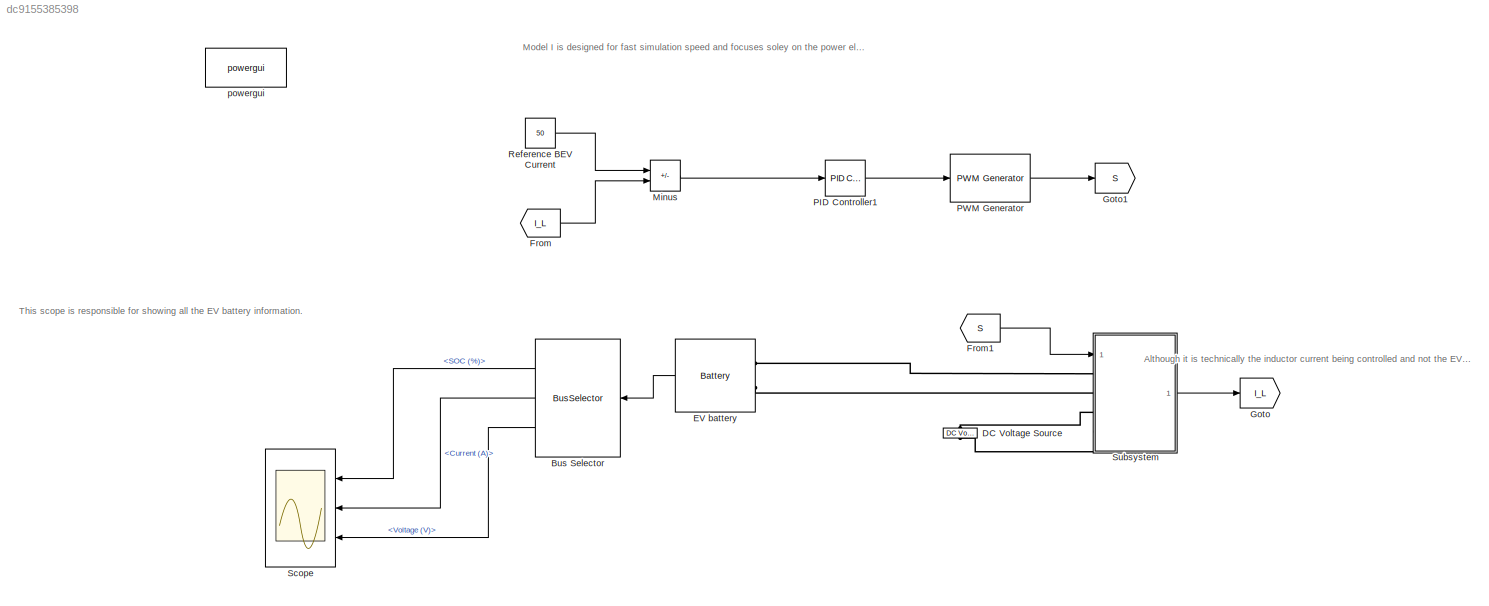
MODEL slx_dc9155385398
KIND model
CONFIG AbsTol = auto
CONFIG EnableMultiTasking = off
CONFIG FixedStep = auto
CONFIG MaxStep = auto
CONFIG MinStep = auto
CONFIG RelTol = 1e-3
CONFIG SampleTimeConstraint = Unconstrained
CONFIG SolverName = VariableStepAuto
CONFIG StartTime = 0.0
CONFIG StopTime = 10.0
BLOCK [BusSelector] Bus Selector
  OutputSignals = SOC (%),Current (A),Voltage (V)
  Ports = [1, 3]
BLOCK [Reference] DC Voltage Source  REF=spsDCVoltageSourceLib/DC Voltage Source
  NameLocation = right
  Ports = [0, 0, 0, 0, 0, 1, 1]
  SourceBlock = spsDCVoltageSourceLib/DC Voltage Source
  SourceProductBaseCode = PS
  SourceType = DC Voltage Source
BLOCK [Reference] EV battery  REF=spsBatteryLib/Battery
  Ports = [0, 1, 0, 0, 0, 2]
  SourceBlock = spsBatteryLib/Battery
  SourceProductBaseCode = PS
  SourceType = Battery
BLOCK [From] From
  GotoTag = I_L
BLOCK [From] From1
  GotoTag = S
BLOCK [Goto] Goto
  GotoTag = I_L
BLOCK [Goto] Goto1
  GotoTag = S
BLOCK [Sum] Minus
  IconShape = rectangular
  Inputs = +-
  Ports = [2, 1]
BLOCK [Reference] PID Controller1  REF=slpidlib/PID Controller
  Ports = [1, 1]
  SourceBlock = slpidlib/PID Controller
  SourceProductBaseCode = SL
  SourceType = PID 1dof
BLOCK [Reference] PWM Generator  REF=eePwmGenerator/PWM Generator
  Ports = [1, 1]
  SourceBlock = eePwmGenerator/PWM Generator
  SourceProductBaseCode = PS
  SourceType = PWM Generator
BLOCK [Constant] Reference BEV Current
  Value = 50
BLOCK [Scope] Scope
  Floating = off
  NumInputPorts = 3
  Ports = [3]
  ScopeSpecificationString = Simulink.scopes.TimeScopeBlockCfg('CurrentConfiguration', extmgr.ConfigurationSet(extmgr.Configuration('Core','General UI',true),extmgr.Configuration('Core','Source UI',true),extmgr.Configuration('Sources','WiredSimulink',true),extmgr.Configuration('Visuals','Time Domain',true,'SerializedDisplays',{struct('MinYLimReal','9.99948','MaxYLimReal','10.00452','YLabelReal','','MinYLimMag','9.99948','MaxY...<+2777ch>
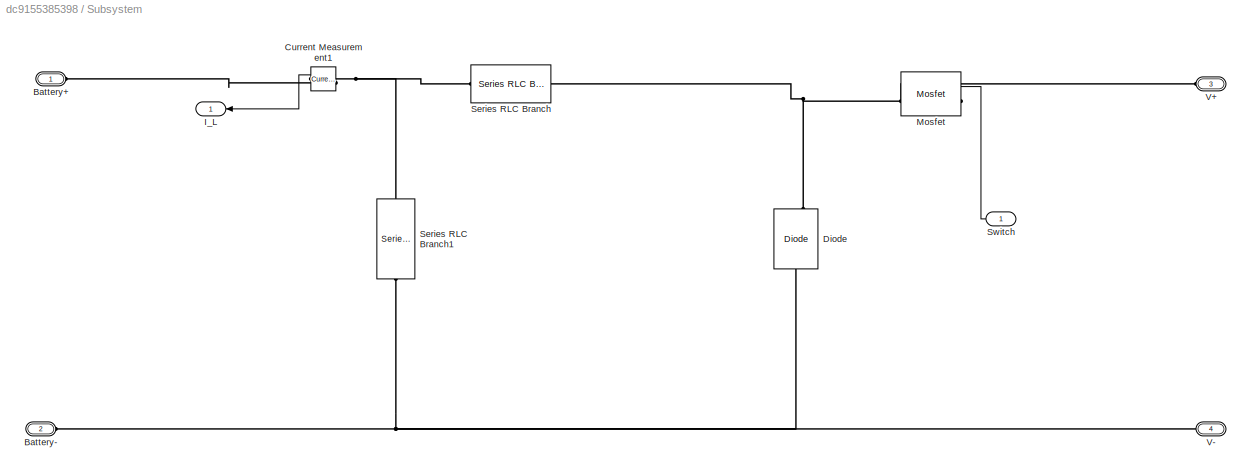
BLOCK [SubSystem] Subsystem
  Ports = [1, 1, 0, 0, 0, 4]
  RequestExecContextInheritance = off
BLOCK [PMIOPort] Subsystem/Battery+
  Side = Left
BLOCK [PMIOPort] Subsystem/Battery-
  Port = 2
  Side = Left
BLOCK [Reference] Subsystem/Current Measurement1  REF=spsCurrentMeasurementLib/Current Measurement
  NameLocation = top
  Ports = [0, 1, 0, 0, 0, 1, 1]
  SourceBlock = spsCurrentMeasurementLib/Current Measurement
  SourceProductBaseCode = PS
  SourceType = Current Measurement
  UserDataPersistent = on
BLOCK [Reference] Subsystem/Diode  REF=spsDiodeLib/Diode
  NameLocation = right
  Ports = [0, 1, 0, 0, 0, 1, 1]
  SourceBlock = spsDiodeLib/Diode
  SourceProductBaseCode = PS
  SourceType = Diode
BLOCK [Outport] Subsystem/I_L
BLOCK [Reference] Subsystem/Mosfet  REF=spsMosfetLib/Mosfet
  NameLocation = top
  Ports = [1, 1, 0, 0, 0, 1, 1]
  SourceBlock = spsMosfetLib/Mosfet
  SourceProductBaseCode = PS
  SourceType = Mosfet
BLOCK [Reference] Subsystem/Series RLC Branch  REF=spsSeriesRLCBranchLib/Series RLC Branch
  Ports = [0, 0, 0, 0, 0, 1, 1]
  SourceBlock = spsSeriesRLCBranchLib/Series RLC Branch
  SourceProductBaseCode = PS
  SourceType = Series RLC Branch
BLOCK [Reference] Subsystem/Series RLC Branch1  REF=spsSeriesRLCBranchLib/Series RLC Branch
  NameLocation = left
  Ports = [0, 0, 0, 0, 0, 1, 1]
  SourceBlock = spsSeriesRLCBranchLib/Series RLC Branch
  SourceProductBaseCode = PS
  SourceType = Series RLC Branch
BLOCK [Inport] Subsystem/Switch
BLOCK [PMIOPort] Subsystem/V+
  Port = 3
  Side = Left
BLOCK [PMIOPort] Subsystem/V-
  Port = 4
  Side = Left
BLOCK [Reference] powergui  REF=spspowerguiLib/powergui
  Ports = []
  Priority = 1
  SourceBlock = spspowerguiLib/powergui
  SourceProductBaseCode = PS
  SourceType = PSB option menu block
ANNOTATION (root): Model I is designed for fast simulation speed and focuses soley on the power electronics charginng and nothing else.
ANNOTATION (root): Although it is technically the inductor current being controlled and not the EV battery current, these two currents are identical as the average current flowing through the capacitor over one switching cycle is zero.
ANNOTATION (root): This scope is responsible for showing all the EV battery information.
LINE Bus Selector:1 -> Scope:1
LINE Bus Selector:2 -> Scope:2
LINE Bus Selector:3 -> Scope:3
LINE EV battery:1 -> Bus Selector:1
LINE From1:1 -> Subsystem:1
LINE From:1 -> Minus:2
LINE Minus:1 -> PID Controller1:1
LINE PID Controller1:1 -> PWM Generator:1
LINE PWM Generator:1 -> Goto1:1
LINE Reference BEV Current:1 -> Minus:1
LINE Subsystem/Current Measurement1:1 -> Subsystem/I_L:1
LINE Subsystem/Switch:1 -> Subsystem/Mosfet:1
LINE Subsystem:1 -> Goto:1
PLINE DC Voltage Source:LConn1 -- Subsystem:LConn4
PLINE DC Voltage Source:RConn1 -- Subsystem:LConn3
PLINE EV battery:LConn1 -- Subsystem:LConn1
PLINE EV battery:LConn2 -- Subsystem:LConn2
PLINE Subsystem/Battery+:RConn1 -- Subsystem/Current Measurement1:RConn1
PNET net1: Subsystem/Battery-:RConn1 -- Subsystem/Diode:LConn1 -- Subsystem/Series RLC Branch1:RConn1 -- Subsystem/V-:RConn1
PNET net2: Subsystem/Current Measurement1:LConn1 -- Subsystem/Series RLC Branch1:LConn1 -- Subsystem/Series RLC Branch:LConn1
PNET net3: Subsystem/Diode:RConn1 -- Subsystem/Mosfet:RConn1 -- Subsystem/Series RLC Branch:RConn1
PLINE Subsystem/Mosfet:LConn1 -- Subsystem/V+:RConn1
note: PNET lines group multi-terminal physical nets as a canonical sorted terminal list (undirected conserving connections); 2-terminal nets keep the pairwise PLINE form
